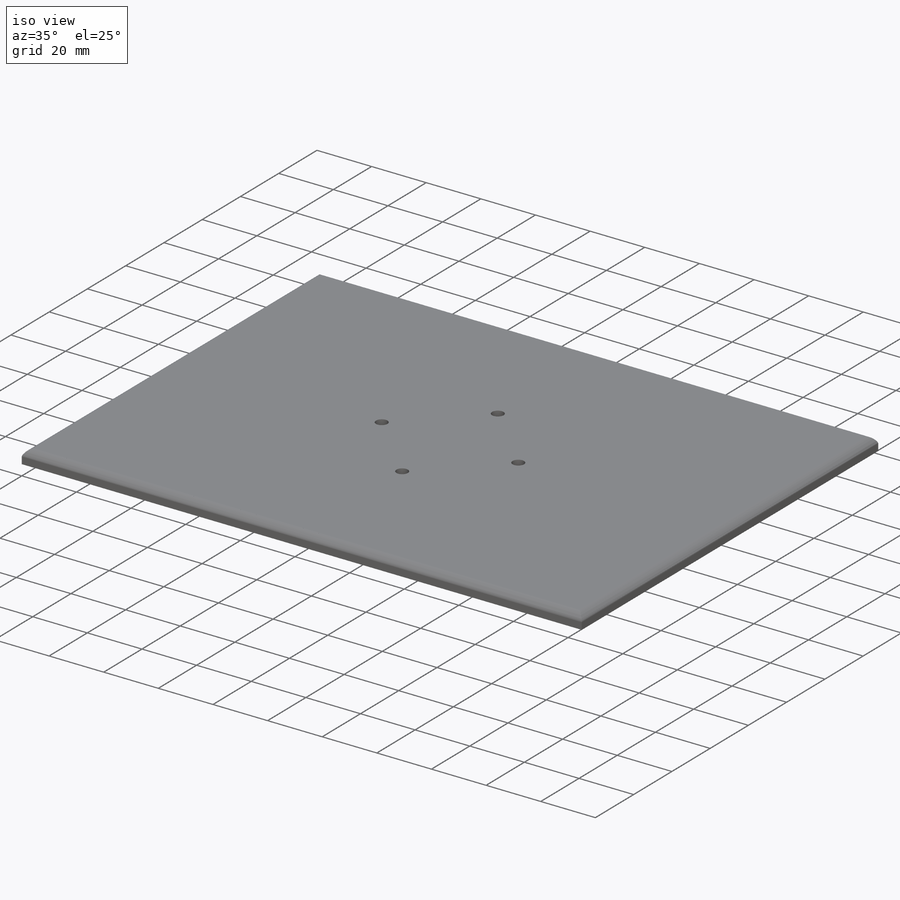
[diagram: iso view]
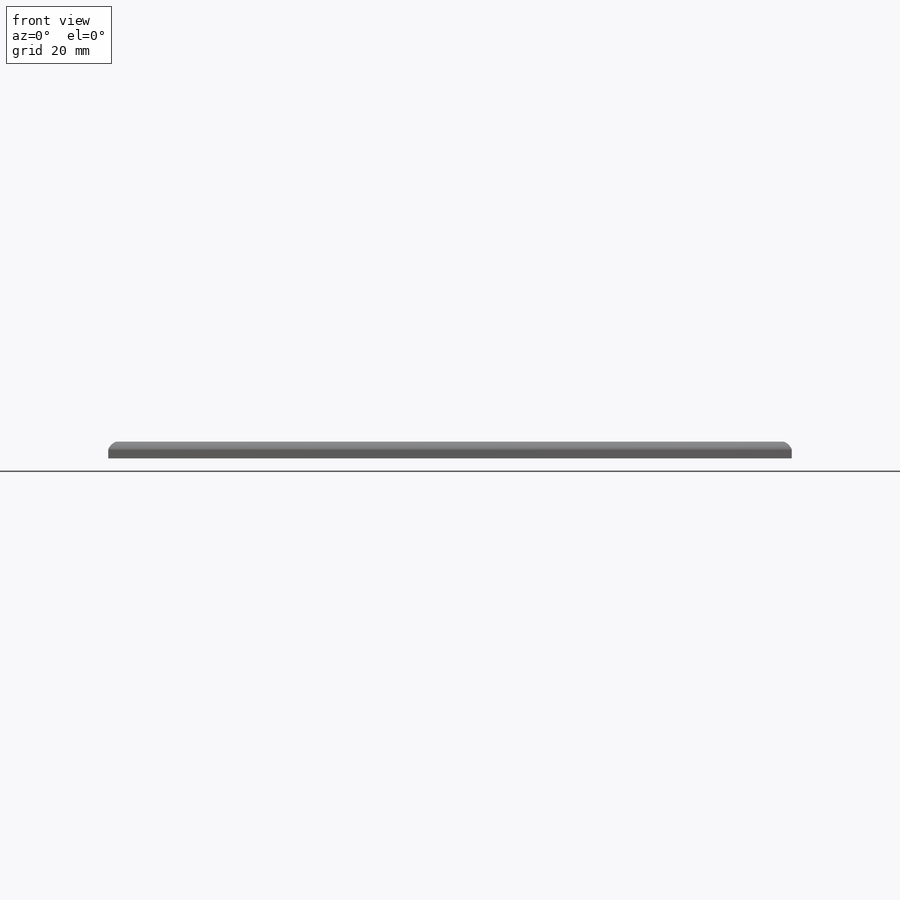
[diagram: front view]
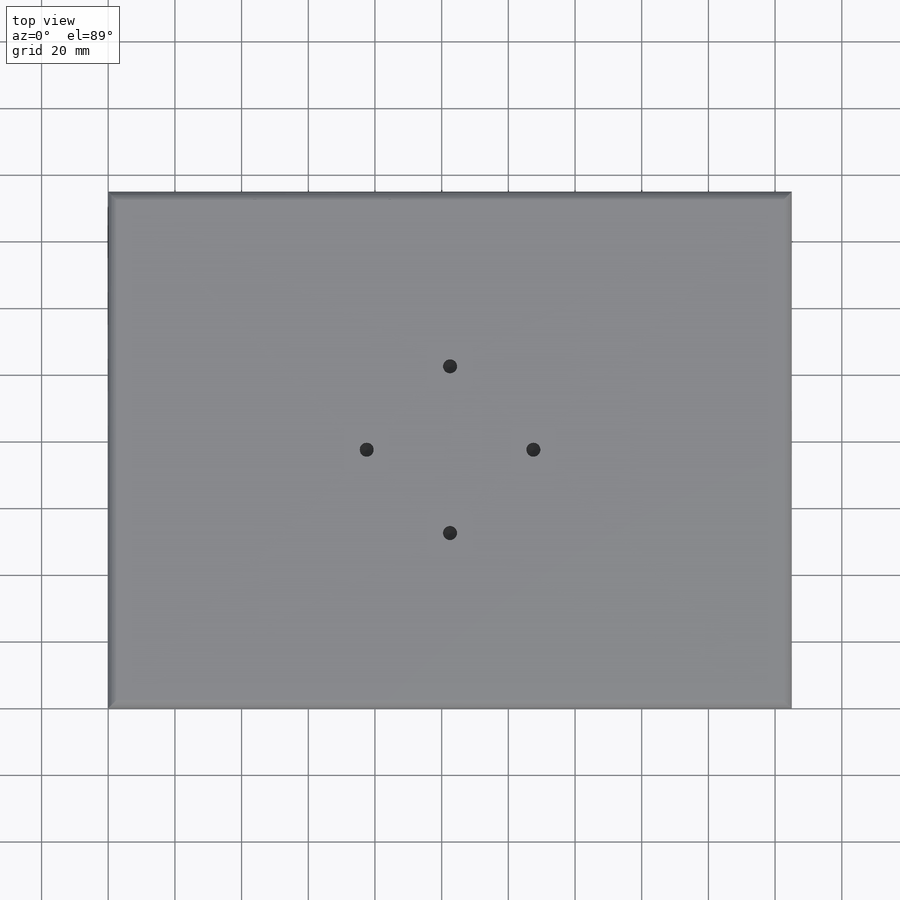
[diagram: top view]
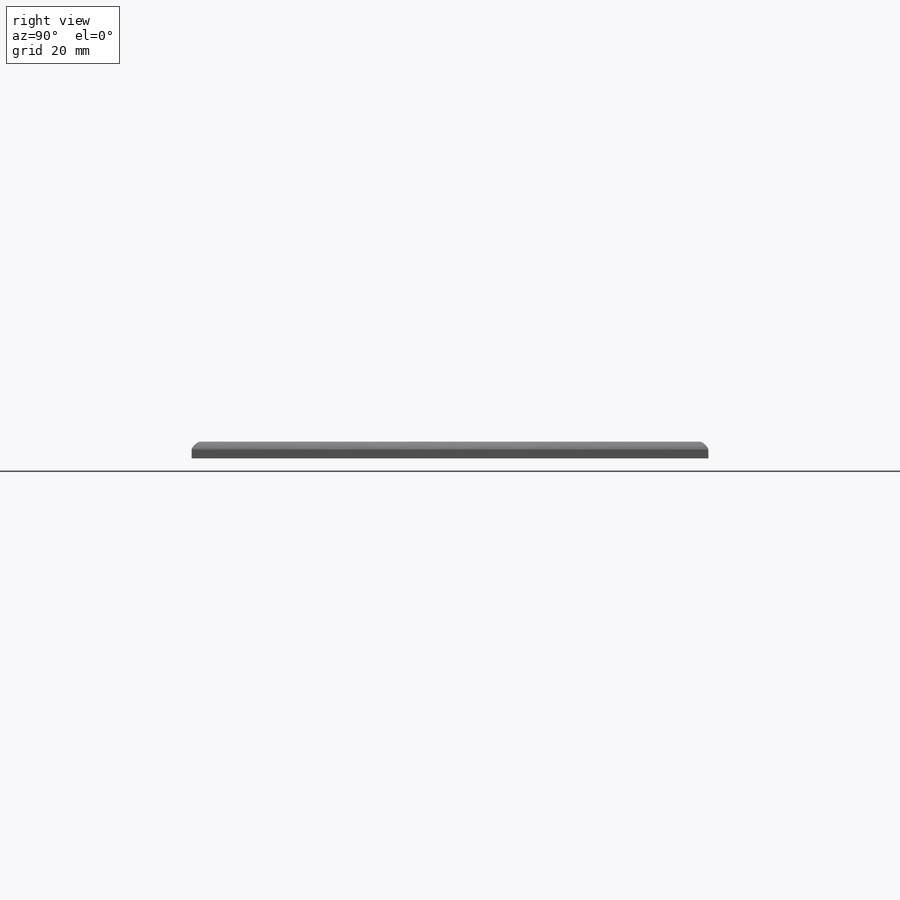
[diagram: right view]
SOLIDWORKS PART (.sldprt)
format: sldprt  version: not decoded by parser v0  size: 203,776 bytes
history: native  units: mm
features: sketch x4, plane x3, material x1, extrude x1, fillet x1, cut_extrude x1, hole x1 (+10 scaffold rows collapsed)
feature tree (22):
  scaffold x10  (default folders/planes/origin — collapsed)
  material  "Aleación 1345"
  plane  "Alzado"
  plane  "Planta"
  plane  "Vista lateral"
  sketch  "Croquis1"  dims[D1=205.0mm D2=155.0mm]
  extrude  "Saliente-Extruir1"  Depth=5mm
  fillet  "Redondeo1"  Radius=2.5mm
  sketch  "Croquis2"  dims[D1=3.0mm D2=25.0mm D3=4.0]
  cut_extrude  "Cortar-Extruir1"  Depth=3mm
  hole  "Perforador para roscar Helicoil de M41"  Depth=3.25mm  [1 undecoded]
  sketch  "Croquis4"
  sketch  "Croquis3"  dims[hole-wizard template sketch: 46 standard entries collapsed; hole parameters kept: c15.Diámetro de taladro=4.2mm c15.Profundidad de taladro=3.25mm c15.D3=~14.816244mm c15.Ángulo de perforador=118.0deg]
decode coverage: 7 of 8 modeling features carry decoded parameters
note: ~ marks probable driven/reference dimensions
note: 1 parameter value undecoded
note: suppression state not decoded; provenance and decode notes live in map.json
